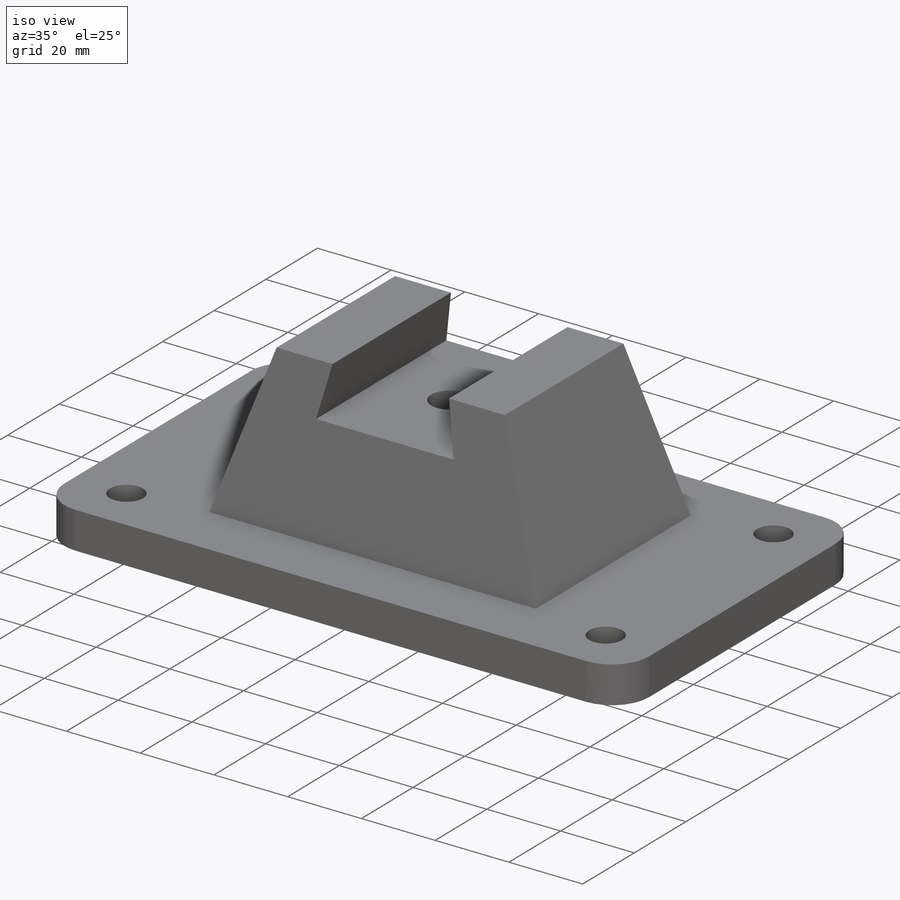
[diagram: iso view]
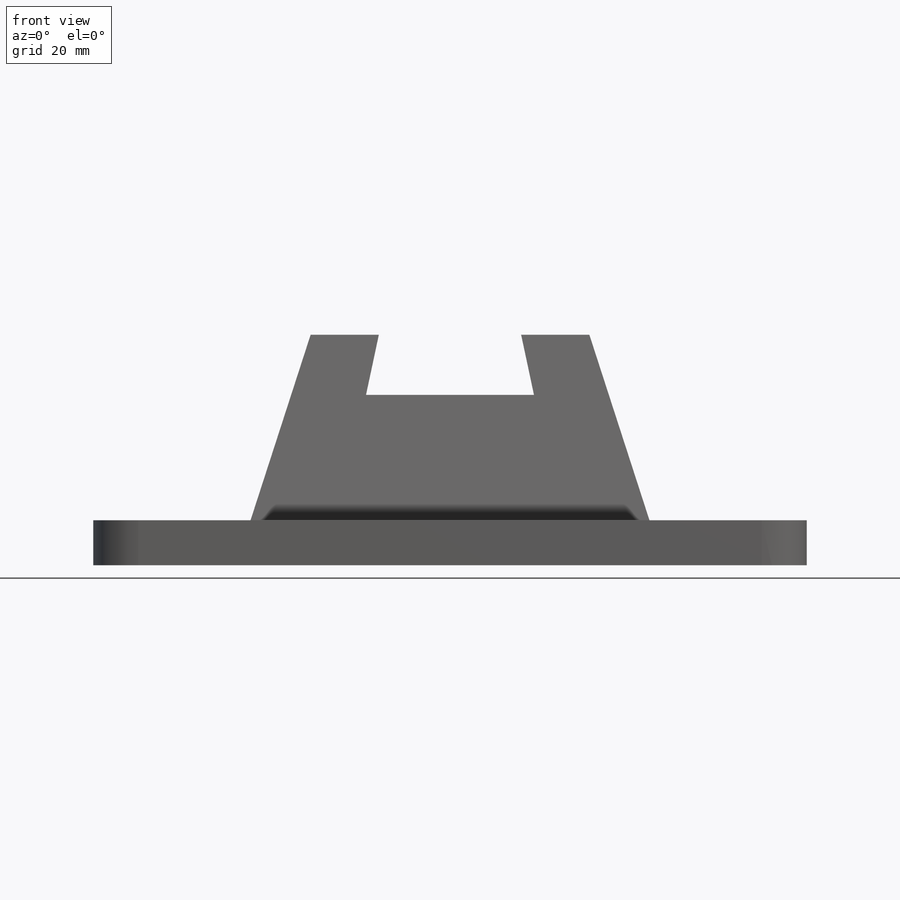
[diagram: front view]
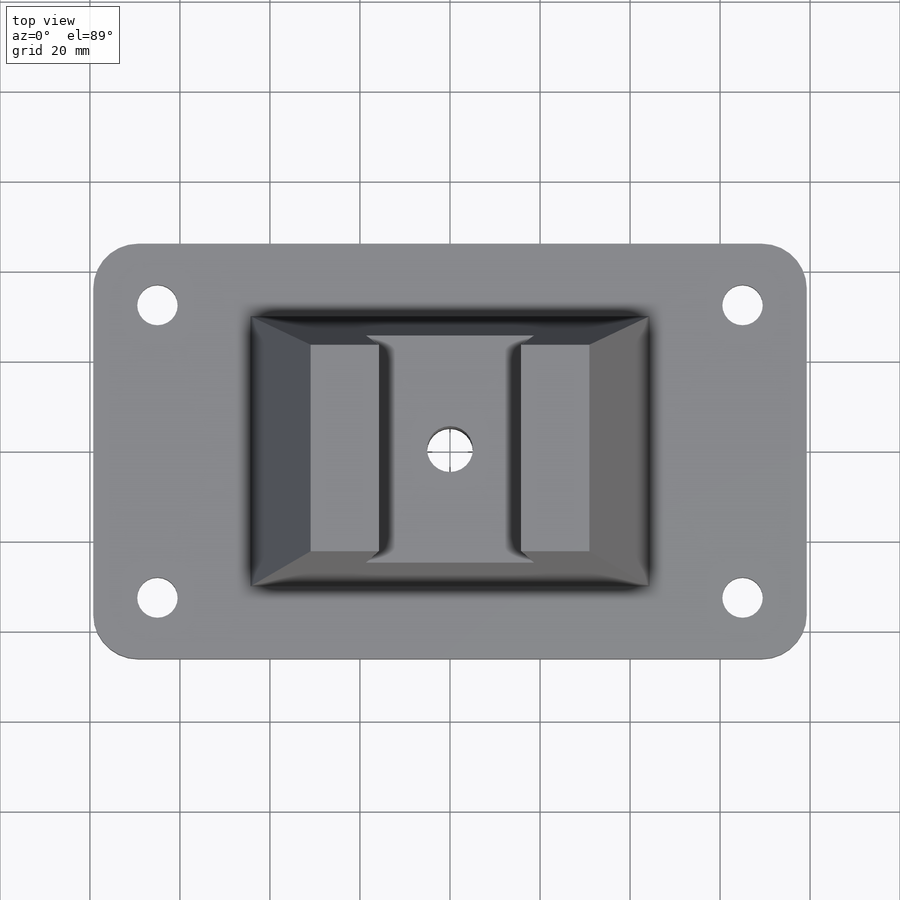
[diagram: top view]
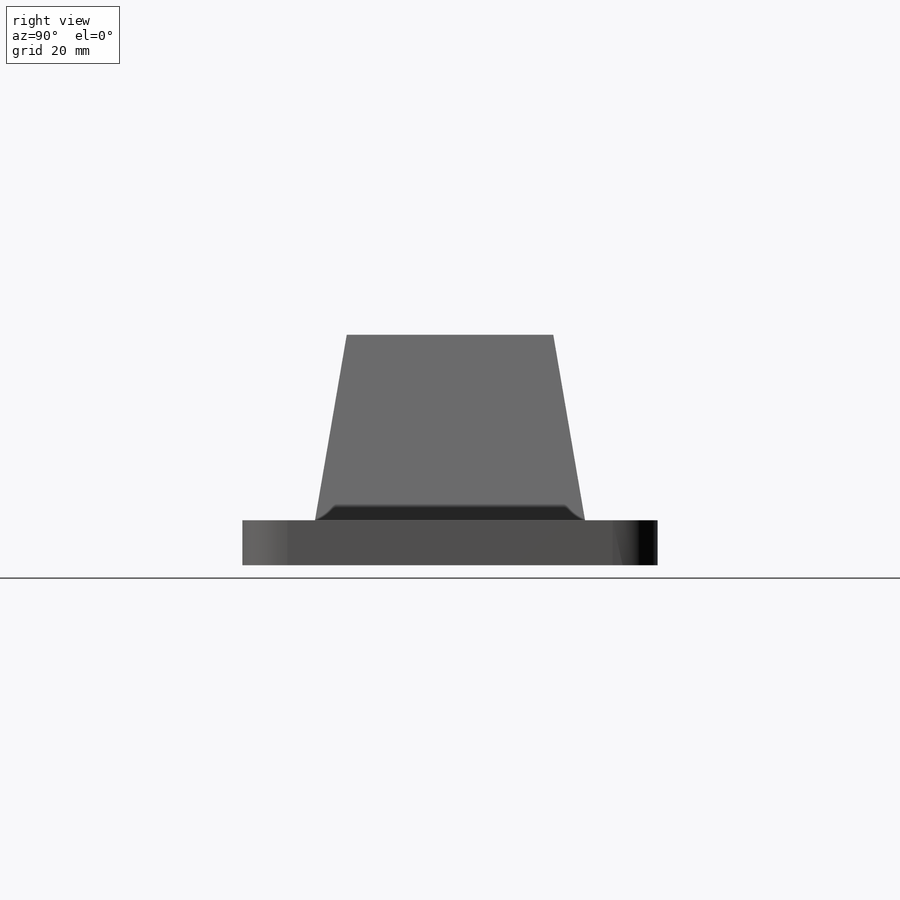
[diagram: right view]
SOLIDWORKS PART (.sldprt)
format: sldprt  version: not decoded by parser v0  size: 278,528 bytes
history: native  units: mm
features: sketch x8, plane x3, extrude x2, cut_extrude x2, hole x2, material x1, thread x1 (+10 scaffold rows collapsed)
feature tree (29):
  scaffold x10  (default folders/planes/origin — collapsed)
  material  "Rostfreier Chromstahl"
  plane  "Ebene vorne"
  plane  "Ebene oben"
  plane  "Ebene rechts"
  sketch  "Skizze1"  dims[D1=10.0mm]
  extrude  "Aufsatz-Linear austragen1"  Depth=10mm
  sketch  "Skizze2"
  extrude  "Aufsatz-Linear austragen2"  Depth=60mm
  sketch  "Skizze3"
  cut_extrude  "Schnitt-Linear austragen1"  Depth=60mm
  sketch  "Skizze4"
  cut_extrude  "Schnitt-Linear austragen2"  Depth=60mm
  hole  "Durchgangsloch für M81"  Diameter=9mm Depth=10mm
  sketch  "Skizze6"  dims[D1=65.0mm D2=130.0mm]
  sketch  "Skizze5"  dims[hole-wizard template sketch: 59 standard entries collapsed; hole parameters kept: c18.Bohrerdurchmesser=9.0mm c18.Bohrungstiefe=10.0mm]
  hole  "M12 Gewindebohrung1"  Diameter=10.2mm Depth=37.841823mm
  sketch  "Skizze8"
  sketch  "Skizze7"  dims[hole-wizard template sketch: 59 standard entries collapsed; hole parameters kept: c18.Bohrerdurchmesser=10.2mm c18.Bohrungstiefe=~37.841823mm]
  thread  "Bohrungsgewinde1"  Diameter=12mm  [1 undecoded]
decode coverage: 11 of 15 modeling features carry decoded parameters
note: ~ marks probable driven/reference dimensions
note: 1 parameter value undecoded
note: suppression state not decoded; provenance and decode notes live in map.json
